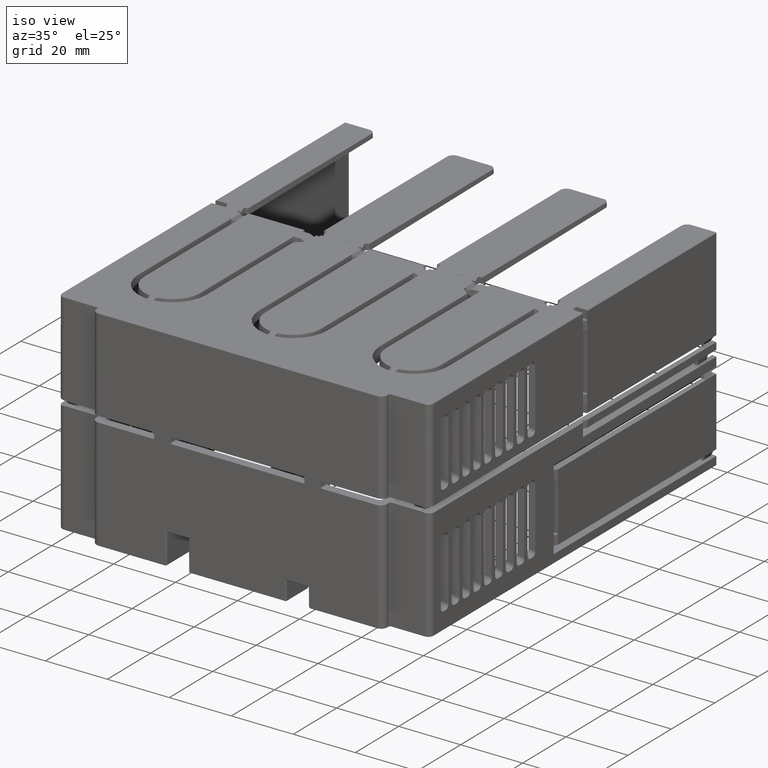
[diagram: clean part render]
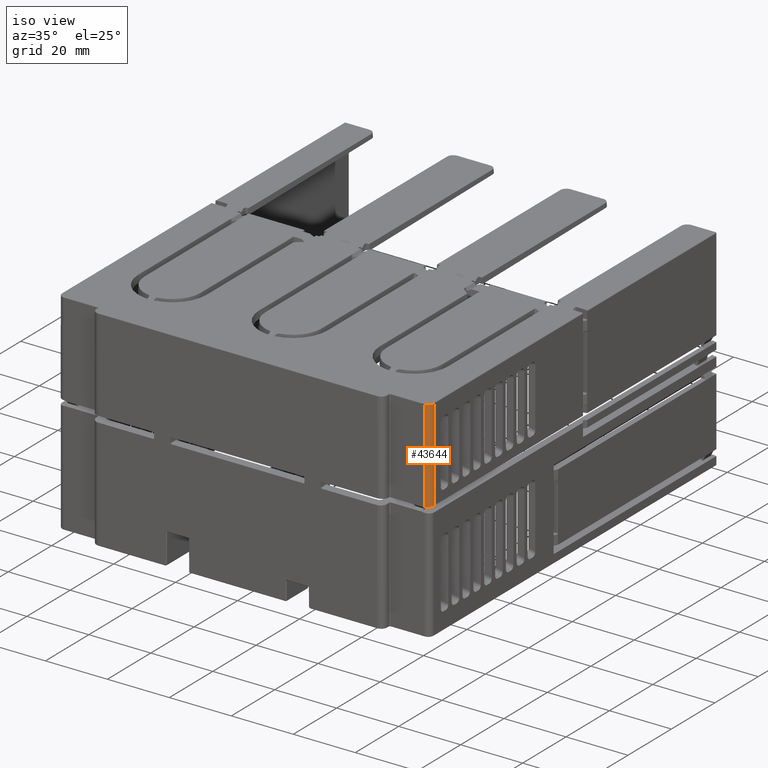
[diagram: same view with one face highlighted and labeled with its STEP entity id]
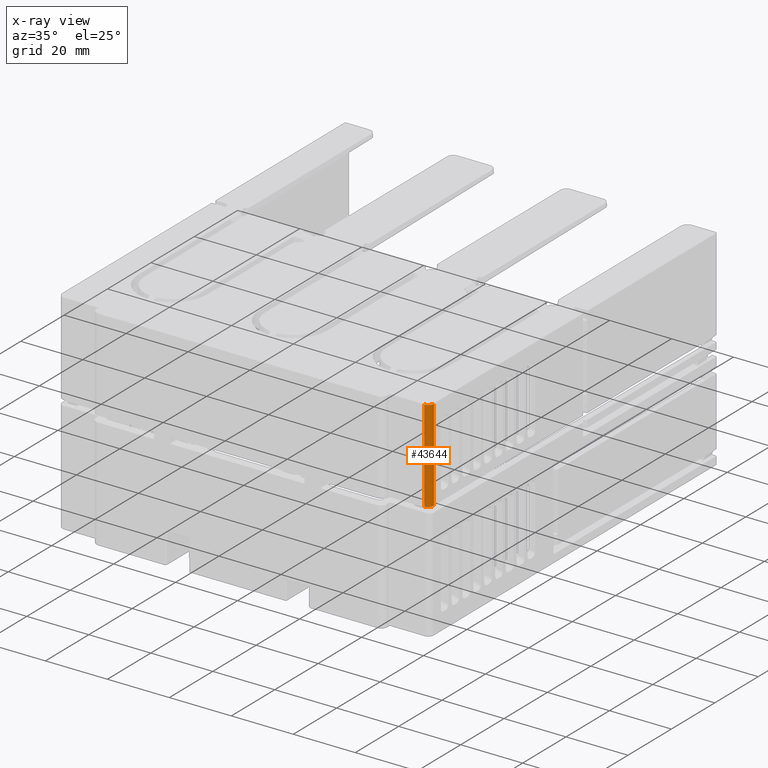
[diagram: x-ray of the same camera — body ghosted, the highlighted face saturated]
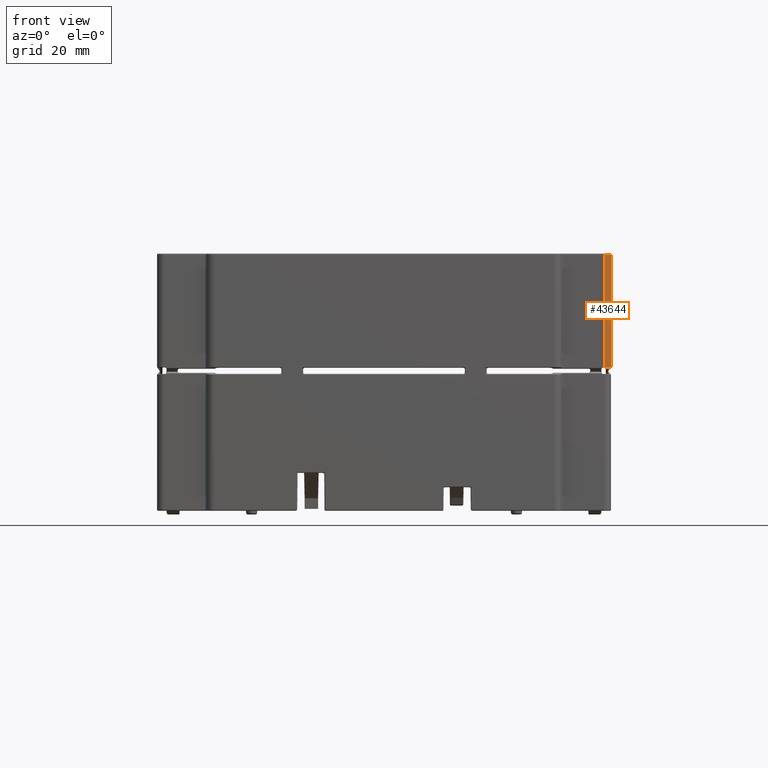
[diagram: same view with one face highlighted and labeled with its STEP entity id]
A machine part, iso view. The second image highlights one B-rep face of the part: STEP entity #43644.
The next image is the same camera in x-ray: the body ghosted, the highlighted face saturated — about 0% of this face is hidden behind the body in this view.
A second angle (front view) of the same face is appended — the face is thin or edge-on in the first view.
In plain terms, the highlighted cylindrical surface (edge-blend (fillet) strip) has radius 1.8 mm, axis along (0, 0, -1).
Its self-contained STEP definition (entity closure, byte-faithful):
#6724=DIRECTION('',(0.E0,-2.506207251127E-14,-1.E0));
#6725=VECTOR('',#6724,2.985747959435E1);
#6726=CARTESIAN_POINT('',(5.82E1,3.000000000001E0,3.77E1));
#6727=LINE('',#6726,#6725);
#10948=CARTESIAN_POINT('',(5.82E1,4.8E0,3.77E1));
#10949=DIRECTION('',(0.E0,0.E0,1.E0));
#10950=DIRECTION('',(0.E0,-1.E0,0.E0));
#10951=AXIS2_PLACEMENT_3D('',#10948,#10949,#10950);
#10953=DIRECTION('',(2.464171777215E-14,0.E0,-1.E0));
#10954=VECTOR('',#10953,2.97E1);
#10955=CARTESIAN_POINT('',(6.E1,4.8E0,3.77E1));
#10956=LINE('',#10955,#10954);
#10957=CARTESIAN_POINT('',(6.E1,4.8E0,8.E0));
#10958=CARTESIAN_POINT('',(6.E1,4.499427024368E0,8.E0));
#10959=CARTESIAN_POINT('',(5.986940624398E1,4.029373676060E0,7.988574526820E0));
#10960=CARTESIAN_POINT('',(5.949853688320E1,3.499940770654E0,7.956127662103E0));
#10961=CARTESIAN_POINT('',(5.896893439864E1,3.129847323771E0,7.909793448529E0));
#10962=CARTESIAN_POINT('',(5.849942920471E1,3.E0,7.868717066594E0));
#10963=CARTESIAN_POINT('',(5.82E1,3.E0,7.842520405653E0));
#25457=CARTESIAN_POINT('',(6.E1,4.8E0,8.E0));
#25458=VERTEX_POINT('',#25457);
#25567=CARTESIAN_POINT('',(6.E1,4.8E0,3.77E1));
#25568=VERTEX_POINT('',#25567);
#25571=CARTESIAN_POINT('',(5.82E1,3.E0,3.77E1));
#25572=VERTEX_POINT('',#25571);
#25575=VERTEX_POINT('',#10963);
#43632=CARTESIAN_POINT('',(5.82E1,4.8E0,3.829714959189E1));
#43633=DIRECTION('',(0.E0,0.E0,-1.E0));
#43634=DIRECTION('',(1.E0,0.E0,0.E0));
#43635=AXIS2_PLACEMENT_3D('',#43632,#43633,#43634);
#43636=CYLINDRICAL_SURFACE('',#43635,1.8E0);
#43637=ORIENTED_EDGE('',*,*,#43624,.T.);
#43638=ORIENTED_EDGE('',*,*,#43438,.T.);
#43640=ORIENTED_EDGE('',*,*,#43639,.T.);
#43641=ORIENTED_EDGE('',*,*,#36748,.F.);
#43642=EDGE_LOOP('',(#43637,#43638,#43640,#43641));
#43643=FACE_OUTER_BOUND('',#43642,.F.);
#43644=ADVANCED_FACE('',(#43643),#43636,.T.);
#10952=CIRCLE('',#10951,1.8E0);
#10964=B_SPLINE_CURVE_WITH_KNOTS('',3,(#10957,#10958,#10959,#10960,#10961,
#10962,#10963),.UNSPECIFIED.,.F.,.F.,(4,1,1,1,4),(0.E0,2.5E-1,5.E-1,7.5E-1,
1.E0),.UNSPECIFIED.);
#36748=EDGE_CURVE('',#25572,#25575,#6727,.T.);
#43438=EDGE_CURVE('',#25568,#25458,#10956,.T.);
#43624=EDGE_CURVE('',#25572,#25568,#10952,.T.);
#43639=EDGE_CURVE('',#25458,#25575,#10964,.T.);